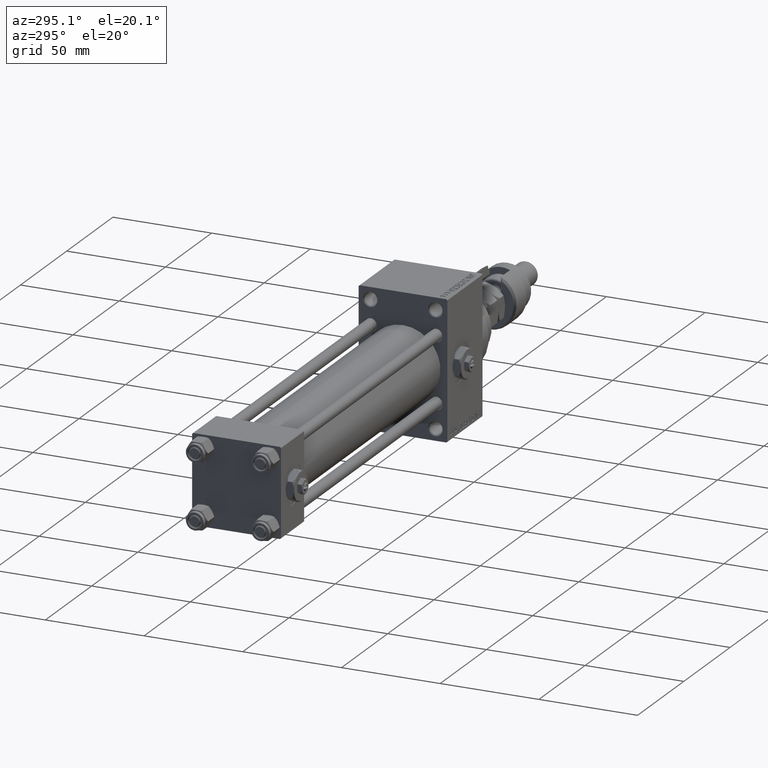
[diagram: clean part render]
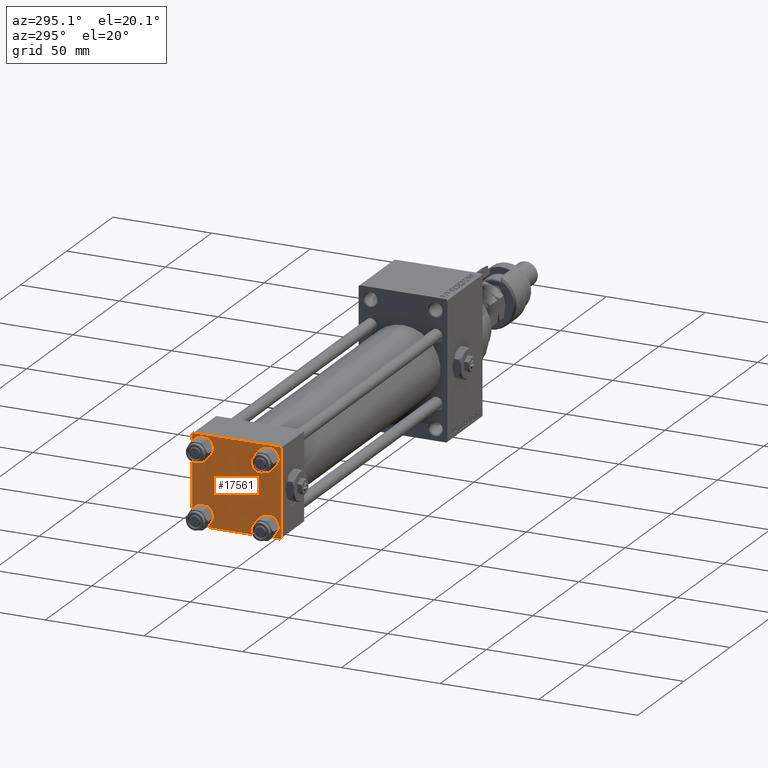
[diagram: same view with one face highlighted and labeled with its STEP entity id]
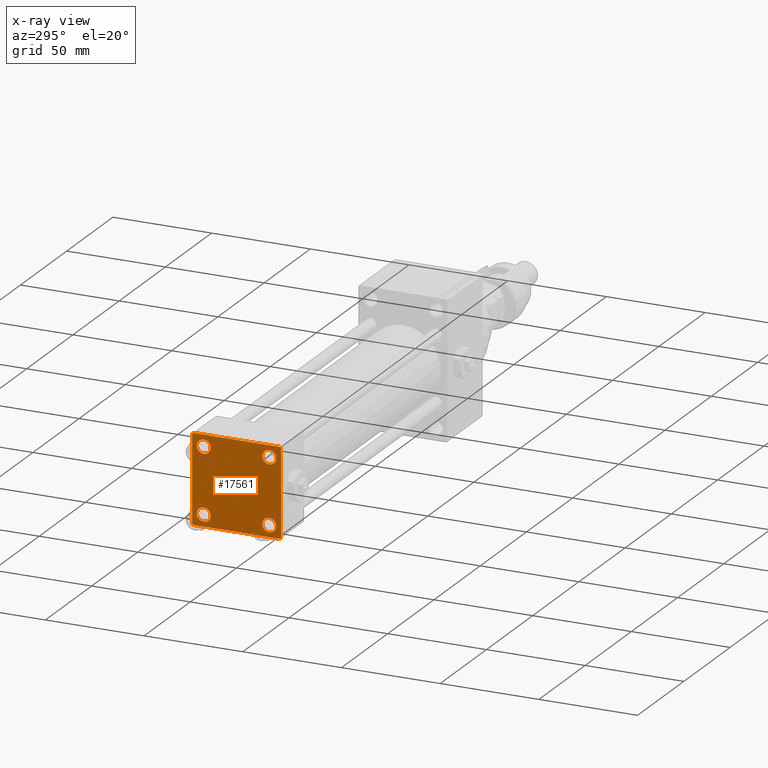
[diagram: x-ray of the same camera — body ghosted, the highlighted face saturated]
A machine part, auxiliary view. The second image highlights one B-rep face of the part: STEP entity #17561.
The next image is the same camera in x-ray: the body ghosted, the highlighted face saturated — about 0% of this face is hidden behind the body in this view.
In plain terms, the highlighted planar face has unit normal (-1, 0, 0).
Its self-contained STEP definition (entity closure, byte-faithful):
#477 = VECTOR ( 'NONE', #25880, 1000.000000000000000 ) ;
#733 = VECTOR ( 'NONE', #39744, 1000.000000000000000 ) ;
#1555 = CARTESIAN_POINT ( 'NONE',  ( 0.000000000000000000, 16.59999999999999787, -20.10000000000000142 ) ) ;
#1897 = CARTESIAN_POINT ( 'NONE',  ( 0.000000000000000000, 16.59999999999999787, 16.60000000000000497 ) ) ;
#2610 = ORIENTED_EDGE ( 'NONE', *, *, #46829, .T. ) ;
#3069 = EDGE_CURVE ( 'NONE', #17993, #39738, #16919, .T. ) ;
#3734 = CARTESIAN_POINT ( 'NONE',  ( 0.000000000000000000, -22.50000000000000000, 22.50000000000000000 ) ) ;
#3898 = CARTESIAN_POINT ( 'NONE',  ( 0.000000000000000000, 0.000000000000000000, 0.000000000000000000 ) ) ;
#4063 = CIRCLE ( 'NONE', #20830, 3.499999999999996003 ) ;
#4809 = VECTOR ( 'NONE', #35969, 1000.000000000000000 ) ;
#5721 = DIRECTION ( 'NONE',  ( 0.000000000000000000, -0.7071067811865426878, 0.7071067811865524577 ) ) ;
#5957 = CARTESIAN_POINT ( 'NONE',  ( 0.000000000000000000, -21.99999999999997868, 22.50000000000000000 ) ) ;
#6303 = ORIENTED_EDGE ( 'NONE', *, *, #3069, .T. ) ;
#6683 = CARTESIAN_POINT ( 'NONE',  ( 0.000000000000000000, 16.59999999999999787, 16.60000000000000497 ) ) ;
#8653 = ORIENTED_EDGE ( 'NONE', *, *, #36339, .T. ) ;
#8868 = ORIENTED_EDGE ( 'NONE', *, *, #26452, .T. ) ;
#8964 = CARTESIAN_POINT ( 'NONE',  ( -0.000000000000000000, -22.24999999999984013, 22.25000000000015277 ) ) ;
#9408 = LINE ( 'NONE', #36960, #35635 ) ;
#9530 = AXIS2_PLACEMENT_3D ( 'NONE', #36935, #40348, #21461 ) ;
#9766 = VERTEX_POINT ( 'NONE', #20905 ) ;
#9939 = CARTESIAN_POINT ( 'NONE',  ( 0.000000000000000000, 22.50000000000000000, -21.99999999999996803 ) ) ;
#10016 = LINE ( 'NONE', #22351, #12545 ) ;
#10201 = AXIS2_PLACEMENT_3D ( 'NONE', #6683, #10364, #22697 ) ;
#10364 = DIRECTION ( 'NONE',  ( 1.000000000000000000, -0.000000000000000000, 0.000000000000000000 ) ) ;
#10529 = CARTESIAN_POINT ( 'NONE',  ( 0.000000000000000000, 16.59999999999999787, -13.10000000000000675 ) ) ;
#10862 = CARTESIAN_POINT ( 'NONE',  ( 0.000000000000000000, -16.59999999999999076, -20.10000000000000497 ) ) ;
#11146 = VERTEX_POINT ( 'NONE', #41690 ) ;
#12545 = VECTOR ( 'NONE', #43073, 1000.000000000000114 ) ;
#12820 = FACE_BOUND ( 'NONE', #33331, .T. ) ;
#13410 = EDGE_CURVE ( 'NONE', #26627, #9766, #9408, .T. ) ;
#13848 = LINE ( 'NONE', #25133, #20786 ) ;
#14423 = EDGE_CURVE ( 'NONE', #32896, #36969, #48995, .T. ) ;
#15770 = CARTESIAN_POINT ( 'NONE',  ( 0.000000000000000000, 22.25000000000014566, -22.24999999999984013 ) ) ;
#16279 = DIRECTION ( 'NONE',  ( 1.000000000000000000, -0.000000000000000000, 0.000000000000000000 ) ) ;
#16300 = LINE ( 'NONE', #15770, #4809 ) ;
#16919 = CIRCLE ( 'NONE', #10201, 3.499999999999996003 ) ;
#16938 = CARTESIAN_POINT ( 'NONE',  ( 0.000000000000000000, 16.59999999999999787, 20.10000000000000142 ) ) ;
#17431 = VERTEX_POINT ( 'NONE', #37047 ) ;
#17561 = ADVANCED_FACE ( 'NONE', ( #24623, #31974, #20695, #12820, #20951 ), #47993, .T. ) ;
#17916 = DIRECTION ( 'NONE',  ( 1.000000000000000000, -0.000000000000000000, 0.000000000000000000 ) ) ;
#17993 = VERTEX_POINT ( 'NONE', #16938 ) ;
#18373 = EDGE_LOOP ( 'NONE', ( #29065, #31997, #34350, #26336, #43674, #47460, #29330, #8868 ) ) ;
#19626 = CARTESIAN_POINT ( 'NONE',  ( 0.000000000000000000, 21.99999999999999289, -22.49999999999999645 ) ) ;
#20593 = CARTESIAN_POINT ( 'NONE',  ( 0.000000000000000000, 22.50000000000000000, -22.49999999999999645 ) ) ;
#20695 = FACE_BOUND ( 'NONE', #31980, .T. ) ;
#20786 = VECTOR ( 'NONE', #21982, 1000.000000000000000 ) ;
#20830 = AXIS2_PLACEMENT_3D ( 'NONE', #47091, #47589, #38949 ) ;
#20905 = CARTESIAN_POINT ( 'NONE',  ( 0.000000000000000000, -22.50000000000000000, -21.99999999999997158 ) ) ;
#20914 = CARTESIAN_POINT ( 'NONE',  ( 0.000000000000000000, -16.59999999999999076, -16.60000000000000853 ) ) ;
#20951 = FACE_OUTER_BOUND ( 'NONE', #18373, .T. ) ;
#20977 = DIRECTION ( 'NONE',  ( 0.000000000000000000, 0.000000000000000000, 1.000000000000000000 ) ) ;
#21260 = CIRCLE ( 'NONE', #9530, 3.499999999999996003 ) ;
#21461 = DIRECTION ( 'NONE',  ( 0.000000000000000000, 0.000000000000000000, 1.000000000000000000 ) ) ;
#21854 = DIRECTION ( 'NONE',  ( 0.000000000000000000, 0.000000000000000000, 1.000000000000000000 ) ) ;
#21892 = CARTESIAN_POINT ( 'NONE',  ( 0.000000000000000000, 21.99999999999999289, 22.50000000000000355 ) ) ;
#21982 = DIRECTION ( 'NONE',  ( 0.000000000000000000, -1.000000000000000000, -7.709882115452476934E-17 ) ) ;
#22351 = CARTESIAN_POINT ( 'NONE',  ( 0.000000000000000000, 22.24999999999999645, 22.24999999999999645 ) ) ;
#22533 = ORIENTED_EDGE ( 'NONE', *, *, #50240, .T. ) ;
#22600 = VERTEX_POINT ( 'NONE', #19626 ) ;
#22697 = DIRECTION ( 'NONE',  ( 0.000000000000000000, 0.000000000000000000, 1.000000000000000000 ) ) ;
#23076 = VERTEX_POINT ( 'NONE', #21892 ) ;
#23825 = ORIENTED_EDGE ( 'NONE', *, *, #40941, .T. ) ;
#24127 = EDGE_CURVE ( 'NONE', #22600, #26627, #28185, .T. ) ;
#24303 = EDGE_CURVE ( 'NONE', #30738, #31683, #41796, .T. ) ;
#24623 = FACE_BOUND ( 'NONE', #42789, .T. ) ;
#24905 = ORIENTED_EDGE ( 'NONE', *, *, #32359, .T. ) ;
#25133 = CARTESIAN_POINT ( 'NONE',  ( 0.000000000000000000, 22.50000000000000000, 22.50000000000000355 ) ) ;
#25188 = CARTESIAN_POINT ( 'NONE',  ( 0.000000000000000000, 22.50000000000000000, 21.99999999999999645 ) ) ;
#25880 = DIRECTION ( 'NONE',  ( 0.000000000000000000, 0.000000000000000000, -1.000000000000000000 ) ) ;
#26114 = CARTESIAN_POINT ( 'NONE',  ( 0.000000000000000000, -16.59999999999999076, -13.10000000000001030 ) ) ;
#26336 = ORIENTED_EDGE ( 'NONE', *, *, #13410, .T. ) ;
#26452 = EDGE_CURVE ( 'NONE', #23076, #32896, #10016, .T. ) ;
#26484 = ORIENTED_EDGE ( 'NONE', *, *, #24303, .T. ) ;
#26627 = VERTEX_POINT ( 'NONE', #43450 ) ;
#26695 = AXIS2_PLACEMENT_3D ( 'NONE', #20914, #28504, #36907 ) ;
#26914 = CIRCLE ( 'NONE', #27717, 3.499999999999996003 ) ;
#27717 = AXIS2_PLACEMENT_3D ( 'NONE', #28572, #36719, #35949 ) ;
#28061 = CARTESIAN_POINT ( 'NONE',  ( 0.000000000000000000, 16.59999999999999787, -16.60000000000000497 ) ) ;
#28185 = LINE ( 'NONE', #20593, #733 ) ;
#28504 = DIRECTION ( 'NONE',  ( 1.000000000000000000, -0.000000000000000000, 0.000000000000000000 ) ) ;
#28572 = CARTESIAN_POINT ( 'NONE',  ( 0.000000000000000000, -16.59999999999999076, 16.60000000000000853 ) ) ;
#28903 = DIRECTION ( 'NONE',  ( -0.000000000000000000, 0.7071067811865525687, 0.7071067811865425767 ) ) ;
#28939 = VERTEX_POINT ( 'NONE', #5957 ) ;
#29065 = ORIENTED_EDGE ( 'NONE', *, *, #14423, .T. ) ;
#29330 = ORIENTED_EDGE ( 'NONE', *, *, #34187, .F. ) ;
#30738 = VERTEX_POINT ( 'NONE', #10529 ) ;
#31045 = VECTOR ( 'NONE', #28903, 999.9999999999998863 ) ;
#31358 = CARTESIAN_POINT ( 'NONE',  ( 0.000000000000000000, -16.59999999999999076, 13.10000000000001030 ) ) ;
#31683 = VERTEX_POINT ( 'NONE', #1555 ) ;
#31745 = CIRCLE ( 'NONE', #26695, 3.499999999999996003 ) ;
#31750 = EDGE_LOOP ( 'NONE', ( #8653, #22533 ) ) ;
#31974 = FACE_BOUND ( 'NONE', #31750, .T. ) ;
#31980 = EDGE_LOOP ( 'NONE', ( #26484, #49900 ) ) ;
#31997 = ORIENTED_EDGE ( 'NONE', *, *, #32818, .T. ) ;
#32359 = EDGE_CURVE ( 'NONE', #39840, #17431, #4063, .T. ) ;
#32818 = EDGE_CURVE ( 'NONE', #36969, #22600, #16300, .T. ) ;
#32896 = VERTEX_POINT ( 'NONE', #25188 ) ;
#33331 = EDGE_LOOP ( 'NONE', ( #6303, #2610 ) ) ;
#33813 = DIRECTION ( 'NONE',  ( 1.000000000000000000, -0.000000000000000000, 0.000000000000000000 ) ) ;
#34187 = EDGE_CURVE ( 'NONE', #23076, #28939, #13848, .T. ) ;
#34350 = ORIENTED_EDGE ( 'NONE', *, *, #24127, .T. ) ;
#35091 = VECTOR ( 'NONE', #50529, 1000.000000000000000 ) ;
#35283 = CIRCLE ( 'NONE', #50367, 3.499999999999996003 ) ;
#35635 = VECTOR ( 'NONE', #5721, 1000.000000000000000 ) ;
#35949 = DIRECTION ( 'NONE',  ( 0.000000000000000000, 0.000000000000000000, 1.000000000000000000 ) ) ;
#35969 = DIRECTION ( 'NONE',  ( -0.000000000000000000, -0.7071067811865426878, -0.7071067811865524577 ) ) ;
#36339 = EDGE_CURVE ( 'NONE', #38801, #37713, #31745, .T. ) ;
#36444 = EDGE_CURVE ( 'NONE', #11146, #9766, #39938, .T. ) ;
#36719 = DIRECTION ( 'NONE',  ( 1.000000000000000000, -0.000000000000000000, 0.000000000000000000 ) ) ;
#36907 = DIRECTION ( 'NONE',  ( 0.000000000000000000, 0.000000000000000000, 1.000000000000000000 ) ) ;
#36935 = CARTESIAN_POINT ( 'NONE',  ( 0.000000000000000000, -16.59999999999999076, -16.60000000000000853 ) ) ;
#36960 = CARTESIAN_POINT ( 'NONE',  ( 0.000000000000000000, -22.25000000000014566, -22.24999999999984013 ) ) ;
#36969 = VERTEX_POINT ( 'NONE', #9939 ) ;
#37047 = CARTESIAN_POINT ( 'NONE',  ( 0.000000000000000000, -16.59999999999999076, 20.10000000000000853 ) ) ;
#37061 = AXIS2_PLACEMENT_3D ( 'NONE', #1897, #17916, #21854 ) ;
#37713 = VERTEX_POINT ( 'NONE', #10862 ) ;
#38801 = VERTEX_POINT ( 'NONE', #26114 ) ;
#38949 = DIRECTION ( 'NONE',  ( 0.000000000000000000, 0.000000000000000000, 1.000000000000000000 ) ) ;
#39738 = VERTEX_POINT ( 'NONE', #41359 ) ;
#39744 = DIRECTION ( 'NONE',  ( 0.000000000000000000, -1.000000000000000000, -2.312964634635742957E-16 ) ) ;
#39840 = VERTEX_POINT ( 'NONE', #31358 ) ;
#39844 = DIRECTION ( 'NONE',  ( -1.000000000000000000, 0.000000000000000000, -0.000000000000000000 ) ) ;
#39938 = LINE ( 'NONE', #3734, #35091 ) ;
#40290 = EDGE_CURVE ( 'NONE', #11146, #28939, #40714, .T. ) ;
#40348 = DIRECTION ( 'NONE',  ( 1.000000000000000000, -0.000000000000000000, 0.000000000000000000 ) ) ;
#40714 = LINE ( 'NONE', #8964, #31045 ) ;
#40941 = EDGE_CURVE ( 'NONE', #17431, #39840, #26914, .T. ) ;
#41111 = EDGE_CURVE ( 'NONE', #31683, #30738, #35283, .T. ) ;
#41359 = CARTESIAN_POINT ( 'NONE',  ( 0.000000000000000000, 16.59999999999999787, 13.10000000000000675 ) ) ;
#41690 = CARTESIAN_POINT ( 'NONE',  ( 0.000000000000000000, -22.50000000000000000, 22.00000000000000000 ) ) ;
#41796 = CIRCLE ( 'NONE', #48515, 3.499999999999996003 ) ;
#42789 = EDGE_LOOP ( 'NONE', ( #23825, #24905 ) ) ;
#43073 = DIRECTION ( 'NONE',  ( 0.000000000000000000, 0.7071067811865474617, -0.7071067811865474617 ) ) ;
#43450 = CARTESIAN_POINT ( 'NONE',  ( 0.000000000000000000, -21.99999999999997158, -22.50000000000000711 ) ) ;
#43674 = ORIENTED_EDGE ( 'NONE', *, *, #36444, .F. ) ;
#43786 = DIRECTION ( 'NONE',  ( -0.000000000000000000, 0.000000000000000000, 1.000000000000000000 ) ) ;
#45046 = CARTESIAN_POINT ( 'NONE',  ( 0.000000000000000000, 22.50000000000000000, 22.50000000000000355 ) ) ;
#45108 = CARTESIAN_POINT ( 'NONE',  ( 0.000000000000000000, 16.59999999999999787, -16.60000000000000497 ) ) ;
#46829 = EDGE_CURVE ( 'NONE', #39738, #17993, #50476, .T. ) ;
#47091 = CARTESIAN_POINT ( 'NONE',  ( 0.000000000000000000, -16.59999999999999076, 16.60000000000000853 ) ) ;
#47460 = ORIENTED_EDGE ( 'NONE', *, *, #40290, .T. ) ;
#47589 = DIRECTION ( 'NONE',  ( 1.000000000000000000, -0.000000000000000000, 0.000000000000000000 ) ) ;
#47993 = PLANE ( 'NONE',  #50040 ) ;
#48515 = AXIS2_PLACEMENT_3D ( 'NONE', #28061, #16279, #20977 ) ;
#48995 = LINE ( 'NONE', #45046, #477 ) ;
#49818 = DIRECTION ( 'NONE',  ( 0.000000000000000000, 0.000000000000000000, 1.000000000000000000 ) ) ;
#49900 = ORIENTED_EDGE ( 'NONE', *, *, #41111, .T. ) ;
#50040 = AXIS2_PLACEMENT_3D ( 'NONE', #3898, #39844, #43786 ) ;
#50240 = EDGE_CURVE ( 'NONE', #37713, #38801, #21260, .T. ) ;
#50367 = AXIS2_PLACEMENT_3D ( 'NONE', #45108, #33813, #49818 ) ;
#50476 = CIRCLE ( 'NONE', #37061, 3.499999999999996003 ) ;
#50529 = DIRECTION ( 'NONE',  ( 0.000000000000000000, 0.000000000000000000, -1.000000000000000000 ) ) ;